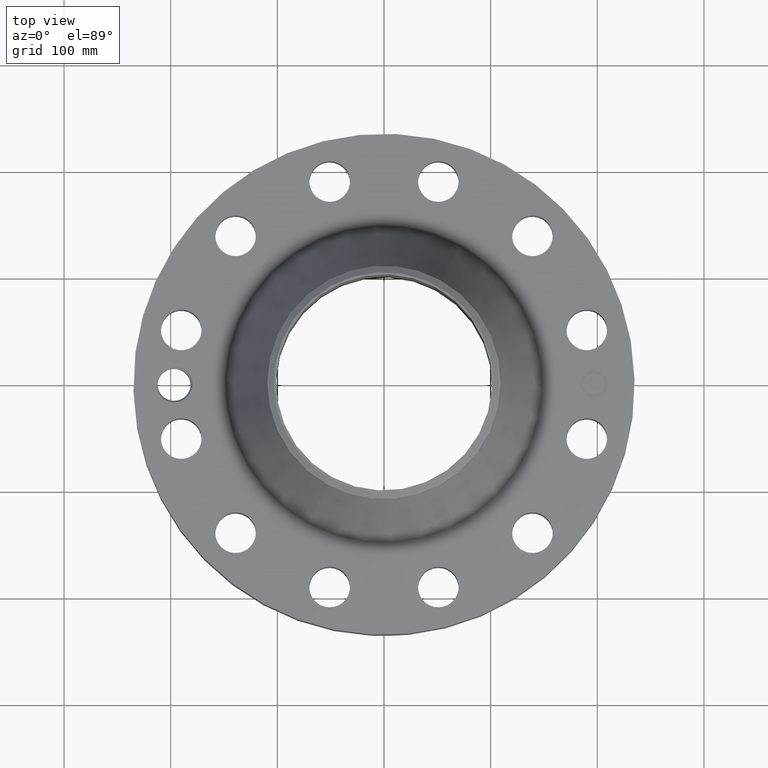
[diagram: clean part render]
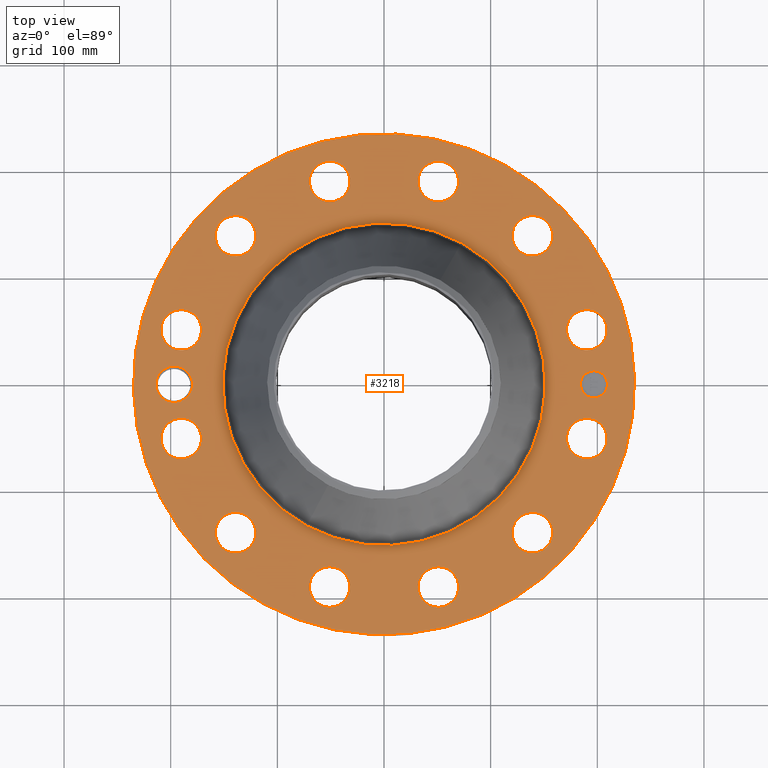
[diagram: same view with one face highlighted and labeled with its STEP entity id]
A machine part, top view. The second image highlights one B-rep face of the part: STEP entity #3218.
In plain terms, the highlighted planar face has unit normal (0, 0, -1).
Its self-contained STEP definition (entity closure, byte-faithful):
#2190=AXIS2_PLACEMENT_3D('Circle Axis2P3D',#2188,#2189,$) ;
#2216=AXIS2_PLACEMENT_3D('Circle Axis2P3D',#2214,#2215,$) ;
#2914=AXIS2_PLACEMENT_3D('Plane Axis2P3D',#2911,#2912,#2913) ;
#2918=AXIS2_PLACEMENT_3D('Circle Axis2P3D',#2916,#2917,$) ;
#2927=AXIS2_PLACEMENT_3D('Circle Axis2P3D',#2925,#2926,$) ;
#2964=AXIS2_PLACEMENT_3D('Circle Axis2P3D',#2962,#2963,$) ;
#2971=AXIS2_PLACEMENT_3D('Circle Axis2P3D',#2969,#2970,$) ;
#2982=AXIS2_PLACEMENT_3D('Circle Axis2P3D',#2980,#2981,$) ;
#2991=AXIS2_PLACEMENT_3D('Circle Axis2P3D',#2989,#2990,$) ;
#3004=AXIS2_PLACEMENT_3D('Circle Axis2P3D',#3002,#3003,$) ;
#3013=AXIS2_PLACEMENT_3D('Circle Axis2P3D',#3011,#3012,$) ;
#3022=AXIS2_PLACEMENT_3D('Circle Axis2P3D',#3020,#3021,$) ;
#3031=AXIS2_PLACEMENT_3D('Circle Axis2P3D',#3029,#3030,$) ;
#3040=AXIS2_PLACEMENT_3D('Circle Axis2P3D',#3038,#3039,$) ;
#3049=AXIS2_PLACEMENT_3D('Circle Axis2P3D',#3047,#3048,$) ;
#3058=AXIS2_PLACEMENT_3D('Circle Axis2P3D',#3056,#3057,$) ;
#3067=AXIS2_PLACEMENT_3D('Circle Axis2P3D',#3065,#3066,$) ;
#3076=AXIS2_PLACEMENT_3D('Circle Axis2P3D',#3074,#3075,$) ;
#3085=AXIS2_PLACEMENT_3D('Circle Axis2P3D',#3083,#3084,$) ;
#3094=AXIS2_PLACEMENT_3D('Circle Axis2P3D',#3092,#3093,$) ;
#3103=AXIS2_PLACEMENT_3D('Circle Axis2P3D',#3101,#3102,$) ;
#3112=AXIS2_PLACEMENT_3D('Circle Axis2P3D',#3110,#3111,$) ;
#3121=AXIS2_PLACEMENT_3D('Circle Axis2P3D',#3119,#3120,$) ;
#3130=AXIS2_PLACEMENT_3D('Circle Axis2P3D',#3128,#3129,$) ;
#3139=AXIS2_PLACEMENT_3D('Circle Axis2P3D',#3137,#3138,$) ;
#3148=AXIS2_PLACEMENT_3D('Circle Axis2P3D',#3146,#3147,$) ;
#3157=AXIS2_PLACEMENT_3D('Circle Axis2P3D',#3155,#3156,$) ;
#3166=AXIS2_PLACEMENT_3D('Circle Axis2P3D',#3164,#3165,$) ;
#3175=AXIS2_PLACEMENT_3D('Circle Axis2P3D',#3173,#3174,$) ;
#3184=AXIS2_PLACEMENT_3D('Circle Axis2P3D',#3182,#3183,$) ;
#3193=AXIS2_PLACEMENT_3D('Circle Axis2P3D',#3191,#3192,$) ;
#3202=AXIS2_PLACEMENT_3D('Circle Axis2P3D',#3200,#3201,$) ;
#3211=AXIS2_PLACEMENT_3D('Circle Axis2P3D',#3209,#3210,$) ;
#2188=CARTESIAN_POINT('Axis2P3D Location',(0.,0.,2.81200000001)) ;
#2192=CARTESIAN_POINT('Vertex',(-2.85377319283,-5.22379679002,2.81200000001)) ;
#2194=CARTESIAN_POINT('Vertex',(2.85377319283,5.22379679002,2.81200000001)) ;
#2214=CARTESIAN_POINT('Axis2P3D Location',(0.,0.,2.81200000001)) ;
#2911=CARTESIAN_POINT('Axis2P3D Location',(0.,9.25000000004,2.81200000001)) ;
#2916=CARTESIAN_POINT('Axis2P3D Location',(0.,0.,2.81200000001)) ;
#2920=CARTESIAN_POINT('Vertex',(4.43468623211,8.11763869752,2.81200000001)) ;
#2922=CARTESIAN_POINT('Vertex',(-4.43468623211,-8.11763869752,2.81200000001)) ;
#2925=CARTESIAN_POINT('Axis2P3D Location',(0.,0.,2.81200000001)) ;
#2935=CARTESIAN_POINT('Control Point',(-7.06250000003,0.,2.81200000001)) ;
#2936=CARTESIAN_POINT('Control Point',(-7.06486308628,0.0644949379282,2.81200000001)) ;
#2937=CARTESIAN_POINT('Control Point',(-7.07479440492,0.128582348785,2.81200000001)) ;
#2938=CARTESIAN_POINT('Control Point',(-7.092233366,0.191067006476,2.81200000001)) ;
#2939=CARTESIAN_POINT('Control Point',(-7.12965644706,0.281919313254,2.81200000001)) ;
#2940=CARTESIAN_POINT('Control Point',(-7.18225434857,0.363946338976,2.81200000001)) ;
#2941=CARTESIAN_POINT('Control Point',(-7.20198765384,0.390886983775,2.81200000001)) ;
#2942=CARTESIAN_POINT('Control Point',(-7.223316465,0.416507265192,2.81200000001)) ;
#2943=CARTESIAN_POINT('Control Point',(-7.24612166295,0.440684673464,2.81200000001)) ;
#2944=CARTESIAN_POINT('Vertex',(-7.06250000003,0.,2.81200000001)) ;
#2946=CARTESIAN_POINT('Vertex',(-7.24612166295,0.440684673464,2.81200000001)) ;
#2950=CARTESIAN_POINT('Control Point',(-7.06250000003,-1.1189649382E-015,2.81200000001)) ;
#2951=CARTESIAN_POINT('Control Point',(-7.06486374409,-0.0645128918491,2.81200000001)) ;
#2952=CARTESIAN_POINT('Control Point',(-7.07479993776,-0.128618027477,2.81200000001)) ;
#2953=CARTESIAN_POINT('Control Point',(-7.0922377525,-0.191096173953,2.81200000001)) ;
#2954=CARTESIAN_POINT('Control Point',(-7.12967332011,-0.281976750301,2.81200000001)) ;
#2955=CARTESIAN_POINT('Control Point',(-7.18226324129,-0.363982952529,2.81200000001)) ;
#2956=CARTESIAN_POINT('Control Point',(-7.20202154088,-0.390949238089,2.81200000001)) ;
#2957=CARTESIAN_POINT('Control Point',(-7.22337471171,-0.416587646536,2.81200000001)) ;
#2958=CARTESIAN_POINT('Control Point',(-7.24620252267,-0.440777111253,2.81200000001)) ;
#2959=CARTESIAN_POINT('Vertex',(-7.24620252267,-0.440777111253,2.81200000001)) ;
#2962=CARTESIAN_POINT('Axis2P3D Location',(-7.75000000003,-1.1189649382E-015,2.81200000001)) ;
#2966=CARTESIAN_POINT('Vertex',(-8.33745376696,0.320927455543,2.81200000001)) ;
#2969=CARTESIAN_POINT('Axis2P3D Location',(-7.75000000003,-1.1189649382E-015,2.81200000001)) ;
#2980=CARTESIAN_POINT('Axis2P3D Location',(7.48592515377,-2.00584759955,2.81200000001)) ;
#2984=CARTESIAN_POINT('Vertex',(6.82773823235,-1.6462784456,2.81200000001)) ;
#2986=CARTESIAN_POINT('Vertex',(8.14411207519,-2.36541675351,2.81200000001)) ;
#2989=CARTESIAN_POINT('Axis2P3D Location',(7.48592515377,-2.00584759955,2.81200000001)) ;
#3002=CARTESIAN_POINT('Axis2P3D Location',(5.48007755422,-5.48007755422,2.81200000001)) ;
#3006=CARTESIAN_POINT('Vertex',(5.87029957163,-6.12056703667,2.81200000001)) ;
#3008=CARTESIAN_POINT('Vertex',(5.08985553681,-4.83958807177,2.81200000001)) ;
#3011=CARTESIAN_POINT('Axis2P3D Location',(5.48007755422,-5.48007755422,2.81200000001)) ;
#3020=CARTESIAN_POINT('Axis2P3D Location',(2.00584759955,-7.48592515377,2.81200000001)) ;
#3024=CARTESIAN_POINT('Vertex',(2.02354503852,-8.23571632514,2.81200000001)) ;
#3026=CARTESIAN_POINT('Vertex',(1.98815016058,-6.7361339824,2.81200000001)) ;
#3029=CARTESIAN_POINT('Axis2P3D Location',(2.00584759955,-7.48592515377,2.81200000001)) ;
#3038=CARTESIAN_POINT('Axis2P3D Location',(-2.00584759955,-7.48592515377,2.81200000001)) ;
#3042=CARTESIAN_POINT('Vertex',(-2.36541675351,-8.14411207519,2.81200000001)) ;
#3044=CARTESIAN_POINT('Vertex',(-1.6462784456,-6.82773823235,2.81200000001)) ;
#3047=CARTESIAN_POINT('Axis2P3D Location',(-2.00584759955,-7.48592515377,2.81200000001)) ;
#3056=CARTESIAN_POINT('Axis2P3D Location',(-5.48007755422,-5.48007755422,2.81200000001)) ;
#3060=CARTESIAN_POINT('Vertex',(-6.12056703667,-5.87029957163,2.81200000001)) ;
#3062=CARTESIAN_POINT('Vertex',(-4.83958807177,-5.08985553681,2.81200000001)) ;
#3065=CARTESIAN_POINT('Axis2P3D Location',(-5.48007755422,-5.48007755422,2.81200000001)) ;
#3074=CARTESIAN_POINT('Axis2P3D Location',(-7.48592515377,-2.00584759955,2.81200000001)) ;
#3078=CARTESIAN_POINT('Vertex',(-8.23571632514,-2.02354503852,2.81200000001)) ;
#3080=CARTESIAN_POINT('Vertex',(-6.7361339824,-1.98815016058,2.81200000001)) ;
#3083=CARTESIAN_POINT('Axis2P3D Location',(-7.48592515377,-2.00584759955,2.81200000001)) ;
#3092=CARTESIAN_POINT('Axis2P3D Location',(-7.48592515377,2.00584759955,2.81200000001)) ;
#3096=CARTESIAN_POINT('Vertex',(-8.14411207519,2.36541675351,2.81200000001)) ;
#3098=CARTESIAN_POINT('Vertex',(-6.82773823235,1.6462784456,2.81200000001)) ;
#3101=CARTESIAN_POINT('Axis2P3D Location',(-7.48592515377,2.00584759955,2.81200000001)) ;
#3110=CARTESIAN_POINT('Axis2P3D Location',(-5.48007755422,5.48007755422,2.81200000001)) ;
#3114=CARTESIAN_POINT('Vertex',(-5.87029957163,6.12056703667,2.81200000001)) ;
#3116=CARTESIAN_POINT('Vertex',(-5.08985553681,4.83958807177,2.81200000001)) ;
#3119=CARTESIAN_POINT('Axis2P3D Location',(-5.48007755422,5.48007755422,2.81200000001)) ;
#3128=CARTESIAN_POINT('Axis2P3D Location',(-2.00584759955,7.48592515377,2.81200000001)) ;
#3132=CARTESIAN_POINT('Vertex',(-2.02354503852,8.23571632514,2.81200000001)) ;
#3134=CARTESIAN_POINT('Vertex',(-1.98815016058,6.7361339824,2.81200000001)) ;
#3137=CARTESIAN_POINT('Axis2P3D Location',(-2.00584759955,7.48592515377,2.81200000001)) ;
#3146=CARTESIAN_POINT('Axis2P3D Location',(2.00584759955,7.48592515377,2.81200000001)) ;
#3150=CARTESIAN_POINT('Vertex',(2.36541675351,8.14411207519,2.81200000001)) ;
#3152=CARTESIAN_POINT('Vertex',(1.6462784456,6.82773823235,2.81200000001)) ;
#3155=CARTESIAN_POINT('Axis2P3D Location',(2.00584759955,7.48592515377,2.81200000001)) ;
#3164=CARTESIAN_POINT('Axis2P3D Location',(5.48007755422,5.48007755422,2.81200000001)) ;
#3168=CARTESIAN_POINT('Vertex',(6.12056703667,5.87029957163,2.81200000001)) ;
#3170=CARTESIAN_POINT('Vertex',(4.83958807177,5.08985553681,2.81200000001)) ;
#3173=CARTESIAN_POINT('Axis2P3D Location',(5.48007755422,5.48007755422,2.81200000001)) ;
#3182=CARTESIAN_POINT('Axis2P3D Location',(7.48592515377,2.00584759955,2.81200000001)) ;
#3186=CARTESIAN_POINT('Vertex',(8.23571632514,2.02354503852,2.81200000001)) ;
#3188=CARTESIAN_POINT('Vertex',(6.7361339824,1.98815016058,2.81200000001)) ;
#3191=CARTESIAN_POINT('Axis2P3D Location',(7.48592515377,2.00584759955,2.81200000001)) ;
#3200=CARTESIAN_POINT('Axis2P3D Location',(7.75000000003,-3.13310182697E-014,2.81200000001)) ;
#3204=CARTESIAN_POINT('Vertex',(7.75000000003,0.499999995002,2.81200000001)) ;
#3206=CARTESIAN_POINT('Vertex',(7.75000000003,-0.499999995002,2.81200000001)) ;
#3209=CARTESIAN_POINT('Axis2P3D Location',(7.75000000003,-3.02120533315E-014,2.81200000001)) ;
#2189=DIRECTION('Axis2P3D Direction',(0.,0.,-0.0393700787402)) ;
#2215=DIRECTION('Axis2P3D Direction',(0.,0.,-0.0393700787402)) ;
#2912=DIRECTION('Axis2P3D Direction',(0.,0.,-0.0393700787402)) ;
#2913=DIRECTION('Axis2P3D XDirection',(0.0393700787402,0.,0.)) ;
#2917=DIRECTION('Axis2P3D Direction',(0.,0.,-0.0393700787402)) ;
#2926=DIRECTION('Axis2P3D Direction',(0.,0.,-0.0393700787402)) ;
#2963=DIRECTION('Axis2P3D Direction',(0.,0.,-0.0393700787402)) ;
#2970=DIRECTION('Axis2P3D Direction',(0.,0.,-0.0393700787402)) ;
#2981=DIRECTION('Axis2P3D Direction',(0.,0.,-0.0393700787402)) ;
#2990=DIRECTION('Axis2P3D Direction',(0.,0.,-0.0393700787402)) ;
#3003=DIRECTION('Axis2P3D Direction',(0.,0.,-0.0393700787402)) ;
#3012=DIRECTION('Axis2P3D Direction',(0.,0.,-0.0393700787402)) ;
#3021=DIRECTION('Axis2P3D Direction',(0.,0.,-0.0393700787402)) ;
#3030=DIRECTION('Axis2P3D Direction',(0.,0.,-0.0393700787402)) ;
#3039=DIRECTION('Axis2P3D Direction',(0.,0.,-0.0393700787402)) ;
#3048=DIRECTION('Axis2P3D Direction',(0.,0.,-0.0393700787402)) ;
#3057=DIRECTION('Axis2P3D Direction',(0.,0.,-0.0393700787402)) ;
#3066=DIRECTION('Axis2P3D Direction',(0.,0.,-0.0393700787402)) ;
#3075=DIRECTION('Axis2P3D Direction',(0.,0.,-0.0393700787402)) ;
#3084=DIRECTION('Axis2P3D Direction',(0.,0.,-0.0393700787402)) ;
#3093=DIRECTION('Axis2P3D Direction',(0.,0.,-0.0393700787402)) ;
#3102=DIRECTION('Axis2P3D Direction',(0.,0.,-0.0393700787402)) ;
#3111=DIRECTION('Axis2P3D Direction',(0.,0.,-0.0393700787402)) ;
#3120=DIRECTION('Axis2P3D Direction',(0.,0.,-0.0393700787402)) ;
#3129=DIRECTION('Axis2P3D Direction',(0.,0.,-0.0393700787402)) ;
#3138=DIRECTION('Axis2P3D Direction',(0.,0.,-0.0393700787402)) ;
#3147=DIRECTION('Axis2P3D Direction',(0.,0.,-0.0393700787402)) ;
#3156=DIRECTION('Axis2P3D Direction',(0.,0.,-0.0393700787402)) ;
#3165=DIRECTION('Axis2P3D Direction',(0.,0.,-0.0393700787402)) ;
#3174=DIRECTION('Axis2P3D Direction',(0.,0.,-0.0393700787402)) ;
#3183=DIRECTION('Axis2P3D Direction',(0.,0.,-0.0393700787402)) ;
#3192=DIRECTION('Axis2P3D Direction',(0.,0.,-0.0393700787402)) ;
#3201=DIRECTION('Axis2P3D Direction',(0.,0.,-0.0393700787402)) ;
#3210=DIRECTION('Axis2P3D Direction',(0.,0.,-0.0393700787402)) ;
#2931=ORIENTED_EDGE('',*,*,#2924,.F.) ;
#2932=ORIENTED_EDGE('',*,*,#2929,.F.) ;
#2975=ORIENTED_EDGE('',*,*,#2948,.F.) ;
#2976=ORIENTED_EDGE('',*,*,#2961,.T.) ;
#2977=ORIENTED_EDGE('',*,*,#2968,.T.) ;
#2978=ORIENTED_EDGE('',*,*,#2973,.T.) ;
#2995=ORIENTED_EDGE('',*,*,#2988,.T.) ;
#2996=ORIENTED_EDGE('',*,*,#2993,.T.) ;
#2999=ORIENTED_EDGE('',*,*,#2196,.T.) ;
#3000=ORIENTED_EDGE('',*,*,#2218,.T.) ;
#3017=ORIENTED_EDGE('',*,*,#3010,.T.) ;
#3018=ORIENTED_EDGE('',*,*,#3015,.T.) ;
#3035=ORIENTED_EDGE('',*,*,#3028,.T.) ;
#3036=ORIENTED_EDGE('',*,*,#3033,.T.) ;
#3053=ORIENTED_EDGE('',*,*,#3046,.T.) ;
#3054=ORIENTED_EDGE('',*,*,#3051,.T.) ;
#3071=ORIENTED_EDGE('',*,*,#3064,.T.) ;
#3072=ORIENTED_EDGE('',*,*,#3069,.T.) ;
#3089=ORIENTED_EDGE('',*,*,#3082,.T.) ;
#3090=ORIENTED_EDGE('',*,*,#3087,.T.) ;
#3107=ORIENTED_EDGE('',*,*,#3100,.T.) ;
#3108=ORIENTED_EDGE('',*,*,#3105,.T.) ;
#3125=ORIENTED_EDGE('',*,*,#3118,.T.) ;
#3126=ORIENTED_EDGE('',*,*,#3123,.T.) ;
#3143=ORIENTED_EDGE('',*,*,#3136,.T.) ;
#3144=ORIENTED_EDGE('',*,*,#3141,.T.) ;
#3161=ORIENTED_EDGE('',*,*,#3154,.T.) ;
#3162=ORIENTED_EDGE('',*,*,#3159,.T.) ;
#3179=ORIENTED_EDGE('',*,*,#3172,.T.) ;
#3180=ORIENTED_EDGE('',*,*,#3177,.T.) ;
#3197=ORIENTED_EDGE('',*,*,#3190,.T.) ;
#3198=ORIENTED_EDGE('',*,*,#3195,.T.) ;
#3215=ORIENTED_EDGE('',*,*,#3208,.T.) ;
#3216=ORIENTED_EDGE('',*,*,#3213,.T.) ;
#2979=FACE_BOUND('',#2974,.T.) ;
#2997=FACE_BOUND('',#2994,.T.) ;
#3001=FACE_BOUND('',#2998,.T.) ;
#3019=FACE_BOUND('',#3016,.T.) ;
#3037=FACE_BOUND('',#3034,.T.) ;
#3055=FACE_BOUND('',#3052,.T.) ;
#3073=FACE_BOUND('',#3070,.T.) ;
#3091=FACE_BOUND('',#3088,.T.) ;
#3109=FACE_BOUND('',#3106,.T.) ;
#3127=FACE_BOUND('',#3124,.T.) ;
#3145=FACE_BOUND('',#3142,.T.) ;
#3163=FACE_BOUND('',#3160,.T.) ;
#3181=FACE_BOUND('',#3178,.T.) ;
#3199=FACE_BOUND('',#3196,.T.) ;
#3217=FACE_BOUND('',#3214,.T.) ;
#3218=ADVANCED_FACE('PartBody',(#2933,#2979,#2997,#3001,#3019,#3037,#3055,#3073,#3091,#3109,#3127,#3145,#3163,#3181,#3199,#3217),#2915,.F.) ;
#2934=B_SPLINE_CURVE_WITH_KNOTS('',5,(#2935,#2936,#2937,#2938,#2939,#2940,#2941,#2942,#2943),.UNSPECIFIED.,.F.,.U.,(6,3,6),(0.,11.2736216402,17.1557440917),.UNSPECIFIED.) ;
#2949=B_SPLINE_CURVE_WITH_KNOTS('',5,(#2950,#2951,#2952,#2953,#2954,#2955,#2956,#2957,#2958),.UNSPECIFIED.,.F.,.U.,(6,3,6),(0.,11.2767599595,17.1737383199),.UNSPECIFIED.) ;
#2191=CIRCLE('generated circle',#2190,5.95248471981) ;
#2217=CIRCLE('generated circle',#2216,5.95248471981) ;
#2919=CIRCLE('generated circle',#2918,9.25000000004) ;
#2928=CIRCLE('generated circle',#2927,9.25000000004) ;
#2965=CIRCLE('generated circle',#2964,0.669400000003) ;
#2972=CIRCLE('generated circle',#2971,0.669400000003) ;
#2983=CIRCLE('generated circle',#2982,0.750000000003) ;
#2992=CIRCLE('generated circle',#2991,0.750000000003) ;
#3005=CIRCLE('generated circle',#3004,0.750000000003) ;
#3014=CIRCLE('generated circle',#3013,0.750000000003) ;
#3023=CIRCLE('generated circle',#3022,0.750000000003) ;
#3032=CIRCLE('generated circle',#3031,0.750000000003) ;
#3041=CIRCLE('generated circle',#3040,0.750000000003) ;
#3050=CIRCLE('generated circle',#3049,0.750000000003) ;
#3059=CIRCLE('generated circle',#3058,0.750000000003) ;
#3068=CIRCLE('generated circle',#3067,0.750000000003) ;
#3077=CIRCLE('generated circle',#3076,0.750000000003) ;
#3086=CIRCLE('generated circle',#3085,0.750000000003) ;
#3095=CIRCLE('generated circle',#3094,0.750000000003) ;
#3104=CIRCLE('generated circle',#3103,0.750000000003) ;
#3113=CIRCLE('generated circle',#3112,0.750000000003) ;
#3122=CIRCLE('generated circle',#3121,0.750000000003) ;
#3131=CIRCLE('generated circle',#3130,0.750000000003) ;
#3140=CIRCLE('generated circle',#3139,0.750000000003) ;
#3149=CIRCLE('generated circle',#3148,0.750000000003) ;
#3158=CIRCLE('generated circle',#3157,0.750000000003) ;
#3167=CIRCLE('generated circle',#3166,0.750000000003) ;
#3176=CIRCLE('generated circle',#3175,0.750000000003) ;
#3185=CIRCLE('generated circle',#3184,0.750000000003) ;
#3194=CIRCLE('generated circle',#3193,0.750000000003) ;
#3203=CIRCLE('generated circle',#3202,0.499999995002) ;
#3212=CIRCLE('generated circle',#3211,0.499999995002) ;
#2196=EDGE_CURVE('',#2193,#2195,#2191,.T.) ;
#2218=EDGE_CURVE('',#2195,#2193,#2217,.T.) ;
#2924=EDGE_CURVE('',#2921,#2923,#2919,.T.) ;
#2929=EDGE_CURVE('',#2923,#2921,#2928,.T.) ;
#2948=EDGE_CURVE('',#2945,#2947,#2934,.T.) ;
#2961=EDGE_CURVE('',#2945,#2960,#2949,.T.) ;
#2968=EDGE_CURVE('',#2960,#2967,#2965,.T.) ;
#2973=EDGE_CURVE('',#2967,#2947,#2972,.T.) ;
#2988=EDGE_CURVE('',#2985,#2987,#2983,.T.) ;
#2993=EDGE_CURVE('',#2987,#2985,#2992,.T.) ;
#3010=EDGE_CURVE('',#3007,#3009,#3005,.T.) ;
#3015=EDGE_CURVE('',#3009,#3007,#3014,.T.) ;
#3028=EDGE_CURVE('',#3025,#3027,#3023,.T.) ;
#3033=EDGE_CURVE('',#3027,#3025,#3032,.T.) ;
#3046=EDGE_CURVE('',#3043,#3045,#3041,.T.) ;
#3051=EDGE_CURVE('',#3045,#3043,#3050,.T.) ;
#3064=EDGE_CURVE('',#3061,#3063,#3059,.T.) ;
#3069=EDGE_CURVE('',#3063,#3061,#3068,.T.) ;
#3082=EDGE_CURVE('',#3079,#3081,#3077,.T.) ;
#3087=EDGE_CURVE('',#3081,#3079,#3086,.T.) ;
#3100=EDGE_CURVE('',#3097,#3099,#3095,.T.) ;
#3105=EDGE_CURVE('',#3099,#3097,#3104,.T.) ;
#3118=EDGE_CURVE('',#3115,#3117,#3113,.T.) ;
#3123=EDGE_CURVE('',#3117,#3115,#3122,.T.) ;
#3136=EDGE_CURVE('',#3133,#3135,#3131,.T.) ;
#3141=EDGE_CURVE('',#3135,#3133,#3140,.T.) ;
#3154=EDGE_CURVE('',#3151,#3153,#3149,.T.) ;
#3159=EDGE_CURVE('',#3153,#3151,#3158,.T.) ;
#3172=EDGE_CURVE('',#3169,#3171,#3167,.T.) ;
#3177=EDGE_CURVE('',#3171,#3169,#3176,.T.) ;
#3190=EDGE_CURVE('',#3187,#3189,#3185,.T.) ;
#3195=EDGE_CURVE('',#3189,#3187,#3194,.T.) ;
#3208=EDGE_CURVE('',#3205,#3207,#3203,.T.) ;
#3213=EDGE_CURVE('',#3207,#3205,#3212,.T.) ;
#2930=EDGE_LOOP('',(#2931,#2932)) ;
#2974=EDGE_LOOP('',(#2975,#2976,#2977,#2978)) ;
#2994=EDGE_LOOP('',(#2995,#2996)) ;
#2998=EDGE_LOOP('',(#2999,#3000)) ;
#3016=EDGE_LOOP('',(#3017,#3018)) ;
#3034=EDGE_LOOP('',(#3035,#3036)) ;
#3052=EDGE_LOOP('',(#3053,#3054)) ;
#3070=EDGE_LOOP('',(#3071,#3072)) ;
#3088=EDGE_LOOP('',(#3089,#3090)) ;
#3106=EDGE_LOOP('',(#3107,#3108)) ;
#3124=EDGE_LOOP('',(#3125,#3126)) ;
#3142=EDGE_LOOP('',(#3143,#3144)) ;
#3160=EDGE_LOOP('',(#3161,#3162)) ;
#3178=EDGE_LOOP('',(#3179,#3180)) ;
#3196=EDGE_LOOP('',(#3197,#3198)) ;
#3214=EDGE_LOOP('',(#3215,#3216)) ;
#2933=FACE_OUTER_BOUND('',#2930,.T.) ;
#2915=PLANE('',#2914) ;
#2193=VERTEX_POINT('',#2192) ;
#2195=VERTEX_POINT('',#2194) ;
#2921=VERTEX_POINT('',#2920) ;
#2923=VERTEX_POINT('',#2922) ;
#2945=VERTEX_POINT('',#2944) ;
#2947=VERTEX_POINT('',#2946) ;
#2960=VERTEX_POINT('',#2959) ;
#2967=VERTEX_POINT('',#2966) ;
#2985=VERTEX_POINT('',#2984) ;
#2987=VERTEX_POINT('',#2986) ;
#3007=VERTEX_POINT('',#3006) ;
#3009=VERTEX_POINT('',#3008) ;
#3025=VERTEX_POINT('',#3024) ;
#3027=VERTEX_POINT('',#3026) ;
#3043=VERTEX_POINT('',#3042) ;
#3045=VERTEX_POINT('',#3044) ;
#3061=VERTEX_POINT('',#3060) ;
#3063=VERTEX_POINT('',#3062) ;
#3079=VERTEX_POINT('',#3078) ;
#3081=VERTEX_POINT('',#3080) ;
#3097=VERTEX_POINT('',#3096) ;
#3099=VERTEX_POINT('',#3098) ;
#3115=VERTEX_POINT('',#3114) ;
#3117=VERTEX_POINT('',#3116) ;
#3133=VERTEX_POINT('',#3132) ;
#3135=VERTEX_POINT('',#3134) ;
#3151=VERTEX_POINT('',#3150) ;
#3153=VERTEX_POINT('',#3152) ;
#3169=VERTEX_POINT('',#3168) ;
#3171=VERTEX_POINT('',#3170) ;
#3187=VERTEX_POINT('',#3186) ;
#3189=VERTEX_POINT('',#3188) ;
#3205=VERTEX_POINT('',#3204) ;
#3207=VERTEX_POINT('',#3206) ;